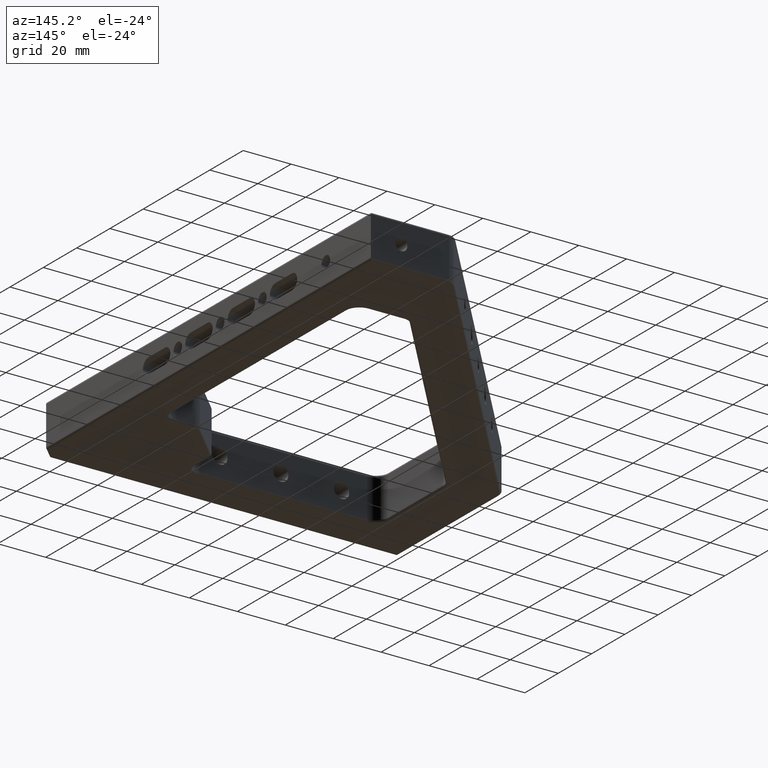
[diagram: clean part render]
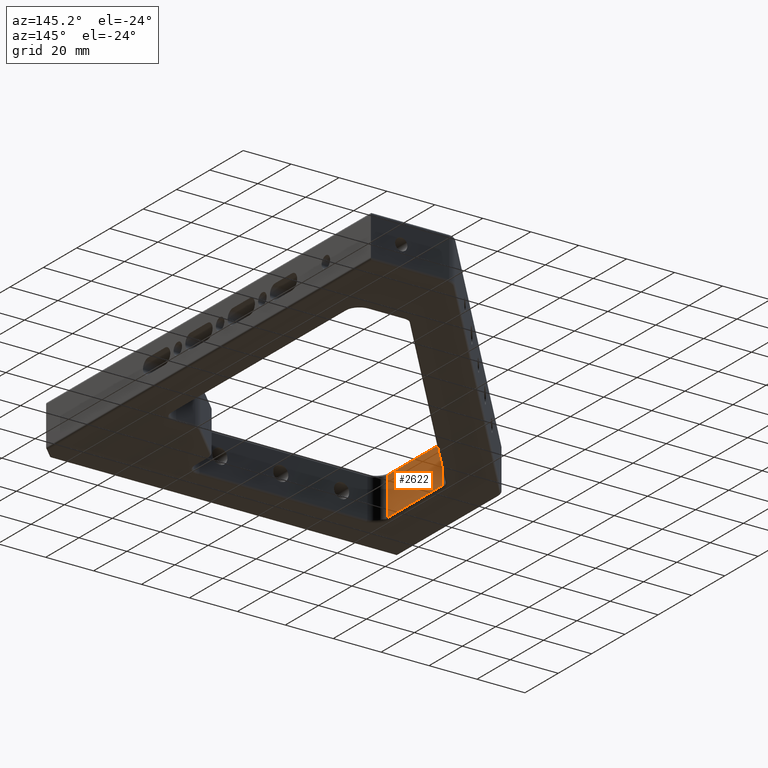
[diagram: same view with one face highlighted and labeled with its STEP entity id]
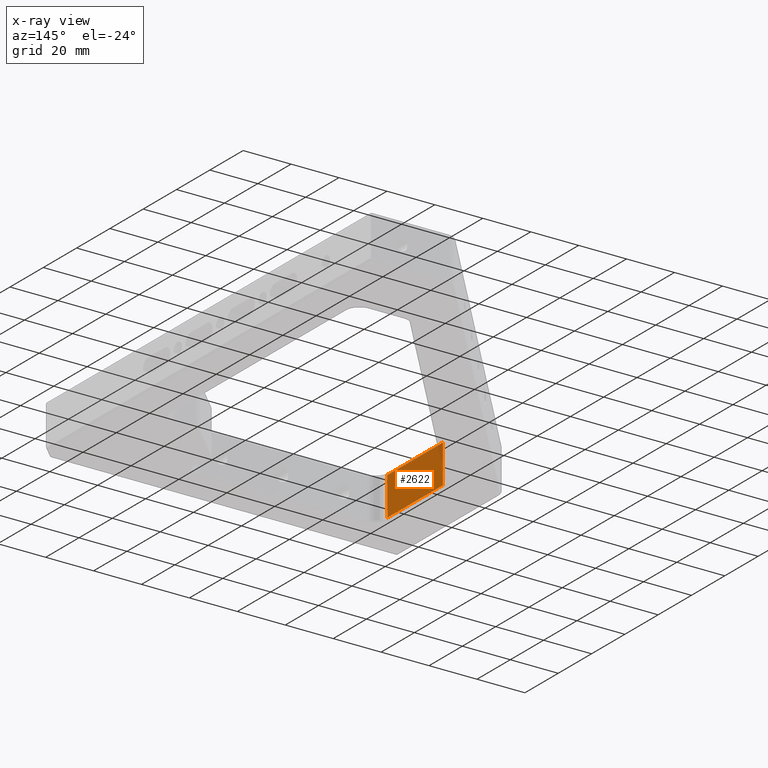
[diagram: x-ray of the same camera — body ghosted, the highlighted face saturated]
A machine part, auxiliary view. The second image highlights one B-rep face of the part: STEP entity #2622.
The next image is the same camera in x-ray: the body ghosted, the highlighted face saturated — about 3% of this face is hidden behind the body in this view.
In plain terms, the highlighted planar face has unit normal (-1, 0, 0).
Its self-contained STEP definition (entity closure, byte-faithful):
#4 = CARTESIAN_POINT ( 'NONE',  ( 19.99999999999998900, 23.00000000000000400, 0.0000000000000000000 ) ) ;
#367 = VERTEX_POINT ( 'NONE', #3183 ) ;
#380 = VERTEX_POINT ( 'NONE', #730 ) ;
#519 = EDGE_CURVE ( 'NONE', #380, #367, #3066, .T. ) ;
#628 = ORIENTED_EDGE ( 'NONE', *, *, #3613, .T. ) ;
#730 = CARTESIAN_POINT ( 'NONE',  ( 19.99999999999998900, 23.00000000000000400, 1.000000000000000000 ) ) ;
#915 = VERTEX_POINT ( 'NONE', #2345 ) ;
#1166 = VECTOR ( 'NONE', #1336, 1000.000000000000000 ) ;
#1245 = ORIENTED_EDGE ( 'NONE', *, *, #1328, .T. ) ;
#1328 = EDGE_CURVE ( 'NONE', #2753, #380, #4525, .T. ) ;
#1336 = DIRECTION ( 'NONE',  ( -8.673617379884037900E-017, -1.000000000000000000, 0.0000000000000000000 ) ) ;
#1381 = VECTOR ( 'NONE', #3809, 1000.000000000000000 ) ;
#1579 = EDGE_LOOP ( 'NONE', ( #628, #3425, #1245, #3715 ) ) ;
#1782 = DIRECTION ( 'NONE',  ( 8.673617379884037900E-017, 1.000000000000000000, -0.0000000000000000000 ) ) ;
#2166 = DIRECTION ( 'NONE',  ( -8.673617379884037900E-017, -1.000000000000000000, 0.0000000000000000000 ) ) ;
#2345 = CARTESIAN_POINT ( 'NONE',  ( 19.99999999999999300, 56.18014882866899000, 16.99999999999999600 ) ) ;
#2350 = LINE ( 'NONE', #4533, #1381 ) ;
#2375 = CARTESIAN_POINT ( 'NONE',  ( 19.99999999999998900, 23.00000000000000400, 16.99999999999999600 ) ) ;
#2565 = AXIS2_PLACEMENT_3D ( 'NONE', #3583, #4314, #2166 ) ;
#2622 = ADVANCED_FACE ( 'NONE', ( #4608 ), #4659, .F. ) ;
#2753 = VERTEX_POINT ( 'NONE', #2375 ) ;
#2834 = VECTOR ( 'NONE', #1782, 1000.000000000000000 ) ;
#3066 = LINE ( 'NONE', #3937, #2834 ) ;
#3076 = LINE ( 'NONE', #3842, #1166 ) ;
#3183 = CARTESIAN_POINT ( 'NONE',  ( 19.99999999999999300, 56.18014882866899000, 1.000000000000000900 ) ) ;
#3232 = DIRECTION ( 'NONE',  ( -0.0000000000000000000, 0.0000000000000000000, -1.000000000000000000 ) ) ;
#3295 = EDGE_CURVE ( 'NONE', #915, #2753, #3076, .T. ) ;
#3425 = ORIENTED_EDGE ( 'NONE', *, *, #3295, .T. ) ;
#3452 = VECTOR ( 'NONE', #3232, 1000.000000000000000 ) ;
#3583 = CARTESIAN_POINT ( 'NONE',  ( 19.99999999999998900, 18.00000000000000400, -2.000000000000001800 ) ) ;
#3613 = EDGE_CURVE ( 'NONE', #367, #915, #2350, .T. ) ;
#3715 = ORIENTED_EDGE ( 'NONE', *, *, #519, .T. ) ;
#3809 = DIRECTION ( 'NONE',  ( 0.0000000000000000000, -0.0000000000000000000, 1.000000000000000000 ) ) ;
#3842 = CARTESIAN_POINT ( 'NONE',  ( 19.99999999999998900, 23.00000000000000400, 16.99999999999999600 ) ) ;
#3937 = CARTESIAN_POINT ( 'NONE',  ( 19.99999999999998900, 18.00000000000000400, 1.000000000000000000 ) ) ;
#4314 = DIRECTION ( 'NONE',  ( -1.000000000000000000, 8.673617379884037900E-017, 0.0000000000000000000 ) ) ;
#4525 = LINE ( 'NONE', #4, #3452 ) ;
#4533 = CARTESIAN_POINT ( 'NONE',  ( 19.99999999999999300, 56.18014882866899000, 18.00000000000000000 ) ) ;
#4608 = FACE_OUTER_BOUND ( 'NONE', #1579, .T. ) ;
#4659 = PLANE ( 'NONE',  #2565 ) ;